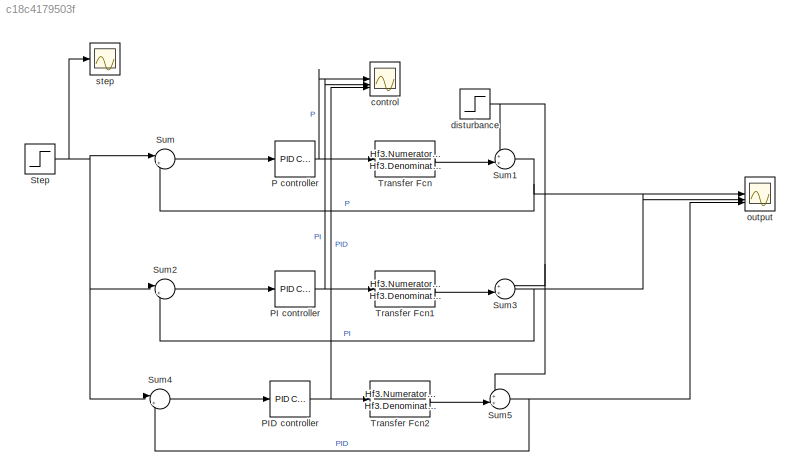
MODEL slx_c18c4179503f
KIND model
CONFIG AbsTol = auto
CONFIG EnableMultiTasking = off
CONFIG FixedStep = auto
CONFIG MaxStep = auto
CONFIG MinStep = auto
CONFIG RelTol = 1e-3
CONFIG SampleTimeConstraint = Unconstrained
CONFIG SolverName = VariableStepAuto
CONFIG StartTime = 0.0
CONFIG StopTime = 300
BLOCK [Reference] P controller  REF=slpidlib/PID Controller
  LibrarySourceBlock = simulink/Continuous/PID Controller
  SourceBlock = slpidlib/PID Controller
  SourceType = PID 1dof
BLOCK [Reference] PI controller  REF=slpidlib/PID Controller
  LibrarySourceBlock = simulink/Continuous/PID Controller
  SourceBlock = slpidlib/PID Controller
  SourceType = PID 1dof
BLOCK [Reference] PID controller  REF=slpidlib/PID Controller
  LibrarySourceBlock = simulink/Continuous/PID Controller
  SourceBlock = slpidlib/PID Controller
  SourceType = PID 1dof
BLOCK [Step] Step
  SampleTime = 0
  Time = 0
BLOCK [Sum] Sum
  Inputs = |+-
BLOCK [Sum] Sum1
  Inputs = ++|
BLOCK [Sum] Sum2
  Inputs = |+-
BLOCK [Sum] Sum3
  Inputs = ++|
BLOCK [Sum] Sum4
  Inputs = |+-
BLOCK [Sum] Sum5
  Inputs = ++|
BLOCK [TransferFcn] Transfer Fcn
  Denominator = Hf3.Denominator{1,1}
  Numerator = Hf3.Numerator{1,1}
BLOCK [TransferFcn] Transfer Fcn1
  Denominator = Hf3.Denominator{1,1}
  Numerator = Hf3.Numerator{1,1}
BLOCK [TransferFcn] Transfer Fcn2
  Denominator = Hf3.Denominator{1,1}
  Numerator = Hf3.Numerator{1,1}
BLOCK [Scope] control
  Floating = off
  NumInputPorts = 3
  ScopeSpecificationString = Simulink.scopes.TimeScopeBlockCfg('CurrentConfiguration', extmgr.ConfigurationSet(extmgr.Configuration('Core','General UI',true),extmgr.Configuration('Core','Source UI',true),extmgr.Configuration('Sources','WiredSimulink',true,'DataLoggingVariableName','ScopeData1'),extmgr.Configuration('Visuals','Time Domain',true,'SerializedDisplays',{struct('MinYLimReal','-0.01399','MaxYLimReal','0.89044','YLab...<+2804ch>
BLOCK [Step] disturbance
  After = 0
  SampleTime = 0
  Time = 0
BLOCK [Scope] output
  Floating = off
  NumInputPorts = 3
  ScopeSpecificationString = Simulink.scopes.TimeScopeBlockCfg('CurrentConfiguration', extmgr.ConfigurationSet(extmgr.Configuration('Core','General UI',true),extmgr.Configuration('Core','Source UI',true),extmgr.Configuration('Sources','WiredSimulink',true),extmgr.Configuration('Visuals','Time Domain',true,'SerializedDisplays',{struct('MinYLimReal','-0.15475','MaxYLimReal','1.39273','YLabelReal','','MinYLimMag','0.00000','MaxY...<+1734ch>
BLOCK [Scope] step
  Floating = off
  NumInputPorts = 1
  ScopeSpecificationString = Simulink.scopes.TimeScopeBlockCfg('CurrentConfiguration', extmgr.ConfigurationSet(extmgr.Configuration('Core','General UI',true),extmgr.Configuration('Core','Source UI',true),extmgr.Configuration('Sources','WiredSimulink',true,'DataLoggingVariableName','ScopeData2'),extmgr.Configuration('Visuals','Time Domain',true),extmgr.Configuration('Tools','Plot Navigation',true),extmgr.Configuration('Tools',...<+40ch>
NET P controller:1 -> Transfer Fcn:1, control:1
NET PI controller:1 -> Transfer Fcn1:1, control:2
NET PID controller:1 -> Transfer Fcn2:1, control:3
NET Step:1 -> Sum2:1, Sum4:1, Sum:1, step:1
NET Sum1:1 -> Sum:2, output:1
LINE Sum2:1 -> PI controller:1
NET Sum3:1 -> Sum2:2, output:2
LINE Sum4:1 -> PID controller:1
NET Sum5:1 -> Sum4:2, output:3
LINE Sum:1 -> P controller:1
LINE Transfer Fcn1:1 -> Sum3:2
LINE Transfer Fcn2:1 -> Sum5:2
LINE Transfer Fcn:1 -> Sum1:2
NET disturbance:1 -> Sum1:1, Sum3:1, Sum5:1
note: NET lines group one-source signal fan-out (src -> all destinations, sorted); 1:1 wires keep LINE
